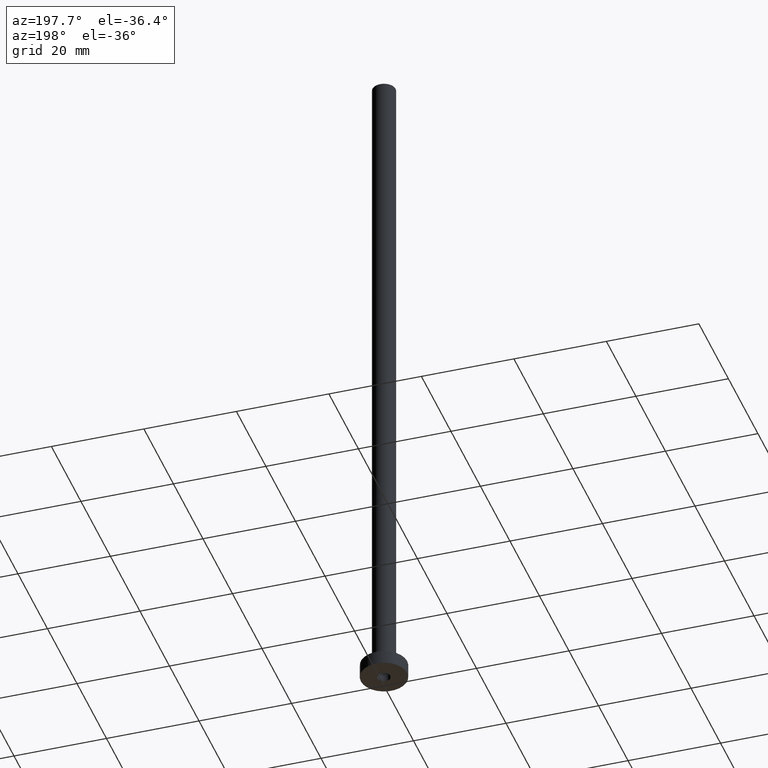
[diagram: clean part render]
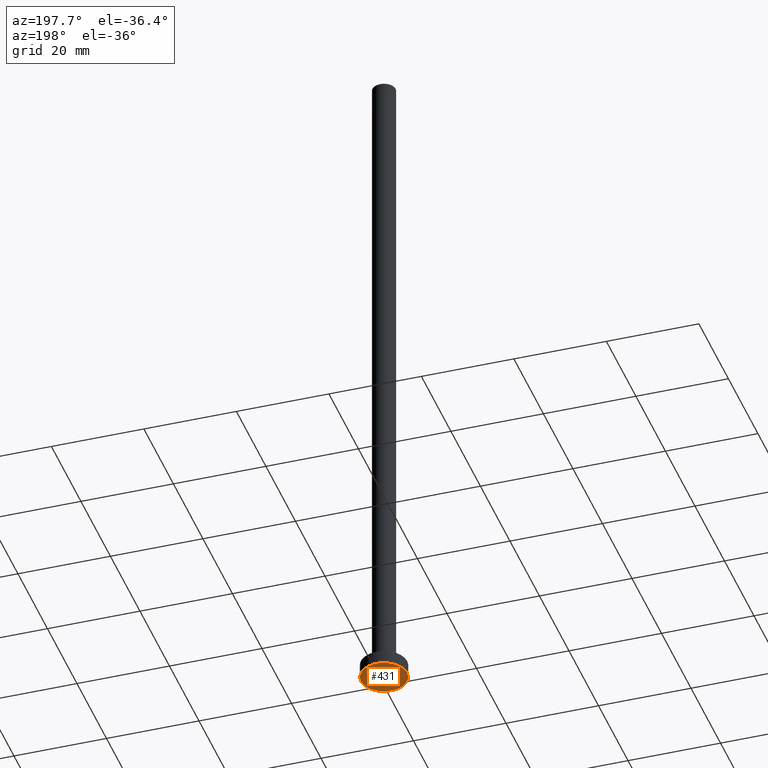
[diagram: same view with one face highlighted and labeled with its STEP entity id]
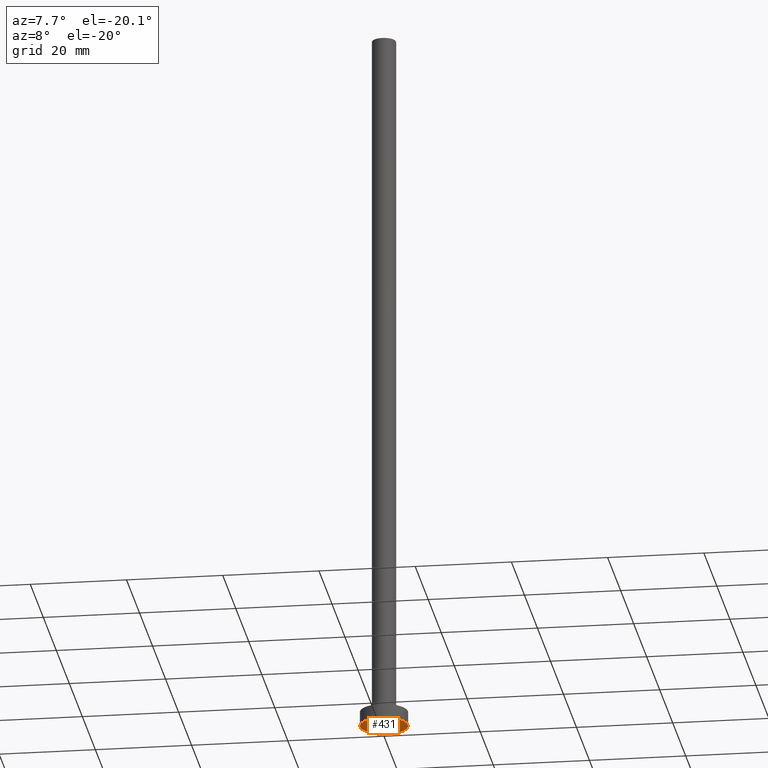
[diagram: same view with one face highlighted and labeled with its STEP entity id]
A machine part, auxiliary view. The second image highlights one B-rep face of the part: STEP entity #431.
A second angle (auxiliary view) of the same face is appended — the face is thin or edge-on in the first view.
In plain terms, the highlighted planar face has unit normal (0, 0, 1).
Its self-contained STEP definition (entity closure, byte-faithful):
#3 = AXIS2_PLACEMENT_3D ( 'NONE', #139, #358, #349 ) ;
#36 = DIRECTION ( 'NONE',  ( 1.000000000000000000, 0.000000000000000000, 0.000000000000000000 ) ) ;
#41 = EDGE_CURVE ( 'NONE', #297, #308, #265, .T. ) ;
#42 = AXIS2_PLACEMENT_3D ( 'NONE', #450, #71, #424 ) ;
#46 = ORIENTED_EDGE ( 'NONE', *, *, #41, .F. ) ;
#57 = ORIENTED_EDGE ( 'NONE', *, *, #329, .F. ) ;
#62 = EDGE_LOOP ( 'NONE', ( #202, #46 ) ) ;
#66 = PLANE ( 'NONE',  #3 ) ;
#71 = DIRECTION ( 'NONE',  ( 0.000000000000000000, 0.000000000000000000, 1.000000000000000000 ) ) ;
#90 = DIRECTION ( 'NONE',  ( -0.000000000000000000, -0.000000000000000000, -1.000000000000000000 ) ) ;
#139 = CARTESIAN_POINT ( 'NONE',  ( 0.000000000000000000, 0.000000000000000000, 0.000000000000000000 ) ) ;
#140 = DIRECTION ( 'NONE',  ( 1.000000000000000000, 0.000000000000000000, 0.000000000000000000 ) ) ;
#164 = EDGE_CURVE ( 'NONE', #238, #410, #258, .T. ) ;
#170 = FACE_OUTER_BOUND ( 'NONE', #62, .T. ) ;
#173 = EDGE_LOOP ( 'NONE', ( #311, #57 ) ) ;
#202 = ORIENTED_EDGE ( 'NONE', *, *, #371, .F. ) ;
#208 = CIRCLE ( 'NONE', #42, 5.000000000000000000 ) ;
#218 = FACE_BOUND ( 'NONE', #173, .T. ) ;
#220 = DIRECTION ( 'NONE',  ( -0.000000000000000000, -0.000000000000000000, -1.000000000000000000 ) ) ;
#233 = DIRECTION ( 'NONE',  ( 1.000000000000000000, 0.000000000000000000, 0.000000000000000000 ) ) ;
#238 = VERTEX_POINT ( 'NONE', #372 ) ;
#248 = CARTESIAN_POINT ( 'NONE',  ( 1.399999999999999911, 1.714505518806294145E-16, 0.000000000000000000 ) ) ;
#258 = CIRCLE ( 'NONE', #332, 1.399999999999999911 ) ;
#265 = CIRCLE ( 'NONE', #447, 5.000000000000000000 ) ;
#267 = CARTESIAN_POINT ( 'NONE',  ( -5.000000000000000000, 0.000000000000000000, 0.000000000000000000 ) ) ;
#297 = VERTEX_POINT ( 'NONE', #440 ) ;
#308 = VERTEX_POINT ( 'NONE', #267 ) ;
#311 = ORIENTED_EDGE ( 'NONE', *, *, #164, .F. ) ;
#329 = EDGE_CURVE ( 'NONE', #410, #238, #439, .T. ) ;
#332 = AXIS2_PLACEMENT_3D ( 'NONE', #422, #220, #36 ) ;
#349 = DIRECTION ( 'NONE',  ( 1.000000000000000000, 0.000000000000000000, -0.000000000000000000 ) ) ;
#358 = DIRECTION ( 'NONE',  ( 0.000000000000000000, 0.000000000000000000, 1.000000000000000000 ) ) ;
#371 = EDGE_CURVE ( 'NONE', #308, #297, #208, .T. ) ;
#372 = CARTESIAN_POINT ( 'NONE',  ( -1.399999999999999911, 0.000000000000000000, 0.000000000000000000 ) ) ;
#395 = DIRECTION ( 'NONE',  ( 0.000000000000000000, 0.000000000000000000, 1.000000000000000000 ) ) ;
#406 = CARTESIAN_POINT ( 'NONE',  ( 0.000000000000000000, 0.000000000000000000, 0.000000000000000000 ) ) ;
#409 = AXIS2_PLACEMENT_3D ( 'NONE', #406, #90, #233 ) ;
#410 = VERTEX_POINT ( 'NONE', #248 ) ;
#420 = CARTESIAN_POINT ( 'NONE',  ( 0.000000000000000000, 0.000000000000000000, 0.000000000000000000 ) ) ;
#422 = CARTESIAN_POINT ( 'NONE',  ( 0.000000000000000000, 0.000000000000000000, 0.000000000000000000 ) ) ;
#424 = DIRECTION ( 'NONE',  ( 1.000000000000000000, 0.000000000000000000, 0.000000000000000000 ) ) ;
#431 = ADVANCED_FACE ( 'NONE', ( #218, #170 ), #66, .F. ) ;
#439 = CIRCLE ( 'NONE', #409, 1.399999999999999911 ) ;
#440 = CARTESIAN_POINT ( 'NONE',  ( 5.000000000000000000, 6.123233995736766282E-16, 0.000000000000000000 ) ) ;
#447 = AXIS2_PLACEMENT_3D ( 'NONE', #420, #395, #140 ) ;
#450 = CARTESIAN_POINT ( 'NONE',  ( 0.000000000000000000, 0.000000000000000000, 0.000000000000000000 ) ) ;